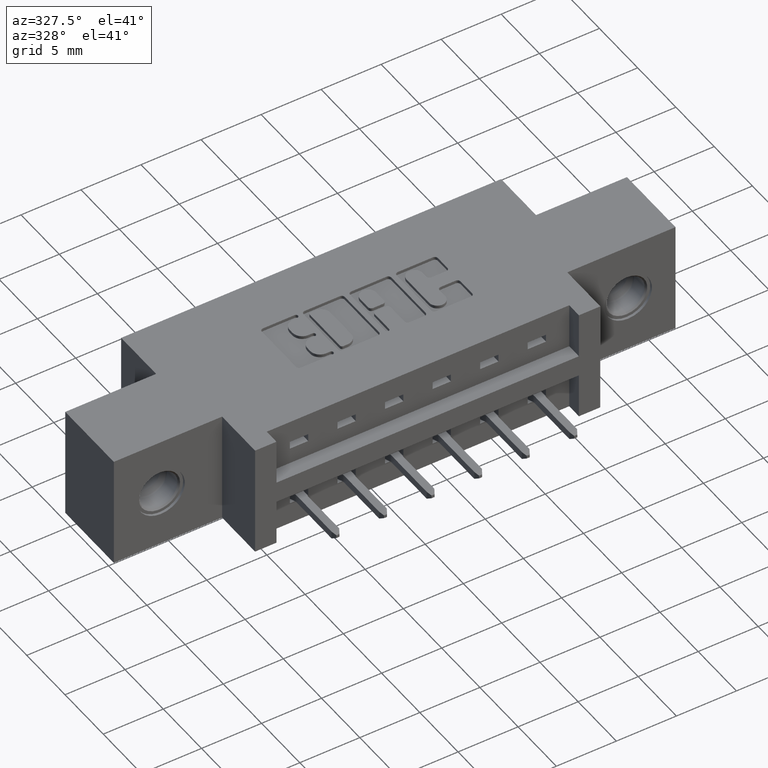
[diagram: clean part render]
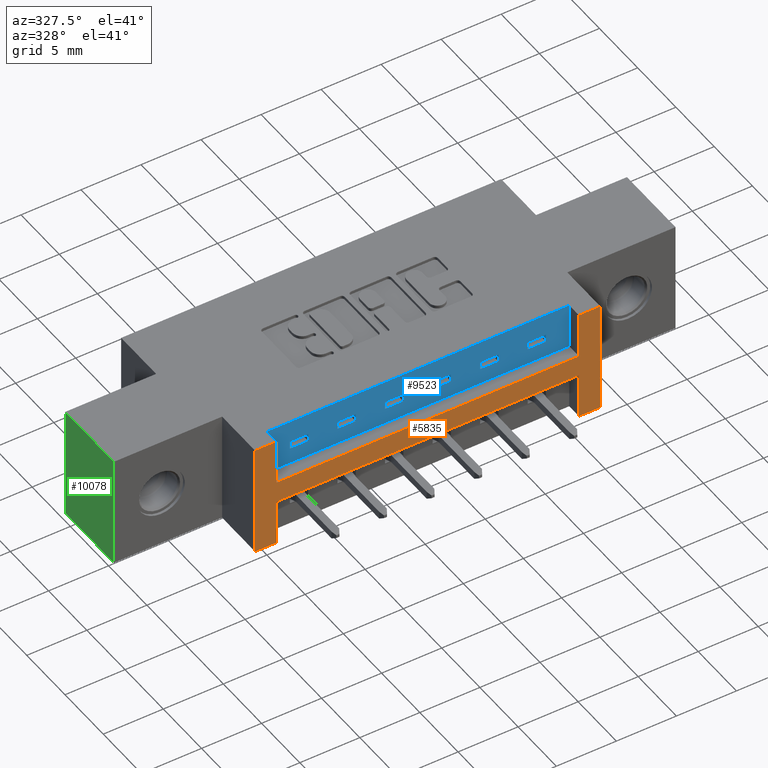
[diagram: same view with three faces highlighted in distinct colors, each labeled with its STEP entity id]
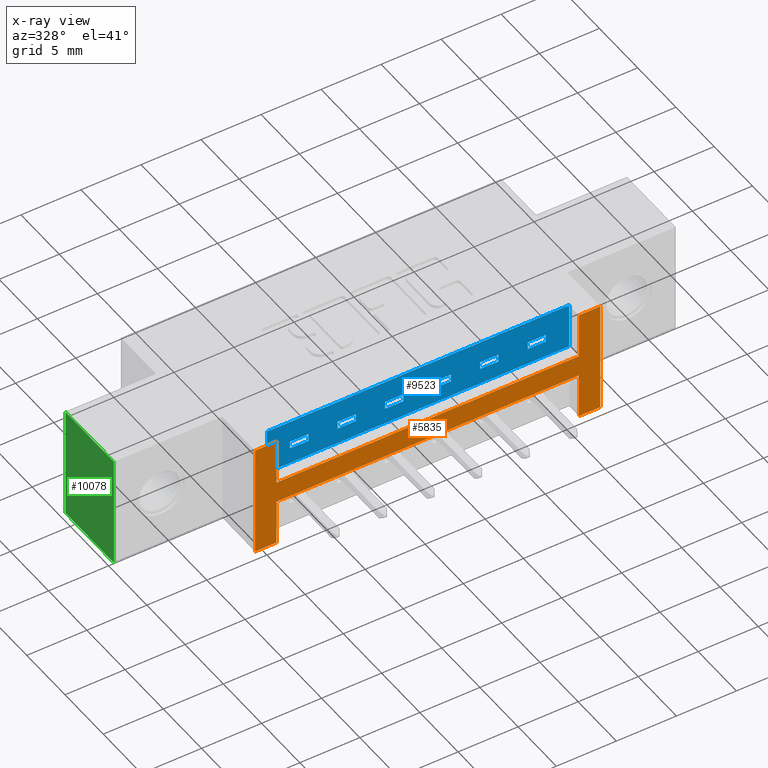
[diagram: x-ray of the same camera — body ghosted, the three highlighted faces saturated]
A machine part, auxiliary view with three faces highlighted in distinct colors.
The next image is the same camera in x-ray (body ghosted, the three faces saturated) — at least one of them is partly hidden behind the body in this view.
Their STEP definitions:

[orange] entity #5835 — the highlighted planar face has unit normal (0, -1, 0).
#41 = VERTEX_POINT ( 'NONE', #7594 ) ;
#54 = ORIENTED_EDGE ( 'NONE', *, *, #1058, .F. ) ;
#66 = ORIENTED_EDGE ( 'NONE', *, *, #1088, .F. ) ;
#119 = DIRECTION ( 'NONE',  ( -1.845843238962339800E-016, -0.0000000000000000000, 1.000000000000000000 ) ) ;
#147 = VERTEX_POINT ( 'NONE', #8760 ) ;
#204 = CARTESIAN_POINT ( 'NONE',  ( 0.3549999999999999800, 0.0000000000000000000, 0.0000000000000000000 ) ) ;
#332 = AXIS2_PLACEMENT_3D ( 'NONE', #10210, #6825, #1271 ) ;
#450 = EDGE_CURVE ( 'NONE', #3047, #6562, #7545, .T. ) ;
#459 = ORIENTED_EDGE ( 'NONE', *, *, #8491, .F. ) ;
#521 = CARTESIAN_POINT ( 'NONE',  ( 1.487000000000000800, 0.0000000000000000000, 1.386300176634805000E-016 ) ) ;
#606 = DIRECTION ( 'NONE',  ( 1.000000000000000000, 0.0000000000000000000, 0.0000000000000000000 ) ) ;
#779 = EDGE_CURVE ( 'NONE', #6380, #147, #6881, .T. ) ;
#930 = CARTESIAN_POINT ( 'NONE',  ( 0.4249999999999999300, 0.0000000000000000000, 0.0000000000000000000 ) ) ;
#1001 = EDGE_CURVE ( 'NONE', #2170, #3047, #5806, .T. ) ;
#1022 = EDGE_CURVE ( 'NONE', #41, #9401, #5551, .T. ) ;
#1058 = EDGE_CURVE ( 'NONE', #6845, #41, #4983, .T. ) ;
#1088 = EDGE_CURVE ( 'NONE', #4265, #6845, #5138, .T. ) ;
#1091 = EDGE_CURVE ( 'NONE', #147, #2153, #4669, .T. ) ;
#1128 = EDGE_CURVE ( 'NONE', #6013, #6380, #4194, .T. ) ;
#1156 = EDGE_CURVE ( 'NONE', #4386, #6013, #3450, .T. ) ;
#1246 = EDGE_CURVE ( 'NONE', #6562, #4386, #3093, .T. ) ;
#1271 = DIRECTION ( 'NONE',  ( 0.0000000000000000000, -0.0000000000000000000, -1.000000000000000000 ) ) ;
#1448 = CARTESIAN_POINT ( 'NONE',  ( 0.4249999999999999900, 0.0000000000000000000, -0.3700000000000000000 ) ) ;
#1540 = CARTESIAN_POINT ( 'NONE',  ( 1.417000000000000700, 0.0000000000000000000, 0.0000000000000000000 ) ) ;
#1567 = DIRECTION ( 'NONE',  ( 1.000000000000000000, 0.0000000000000000000, 0.0000000000000000000 ) ) ;
#1606 = EDGE_LOOP ( 'NONE', ( #9251, #9473, #9670, #54, #66, #459, #3331, #4197, #4270, #4340, #9333, #3038 ) ) ;
#1943 = CARTESIAN_POINT ( 'NONE',  ( 1.487000000000000800, 0.0000000000000000000, -0.3699999999999998800 ) ) ;
#1987 = DIRECTION ( 'NONE',  ( -1.000000000000000000, -0.0000000000000000000, -7.415439722215695600E-017 ) ) ;
#2051 = CARTESIAN_POINT ( 'NONE',  ( 0.4249999999999999300, 0.0000000000000000000, -0.1499999999999999900 ) ) ;
#2153 = VERTEX_POINT ( 'NONE', #9396 ) ;
#2170 = VERTEX_POINT ( 'NONE', #10214 ) ;
#2591 = EDGE_CURVE ( 'NONE', #9401, #2170, #7462, .T. ) ;
#3038 = ORIENTED_EDGE ( 'NONE', *, *, #450, .F. ) ;
#3047 = VERTEX_POINT ( 'NONE', #1943 ) ;
#3093 = LINE ( 'NONE', #9215, #3241 ) ;
#3241 = VECTOR ( 'NONE', #10454, 39.37007874015748100 ) ;
#3317 = LINE ( 'NONE', #7069, #4099 ) ;
#3331 = ORIENTED_EDGE ( 'NONE', *, *, #1091, .F. ) ;
#3450 = LINE ( 'NONE', #3532, #3516 ) ;
#3516 = VECTOR ( 'NONE', #9483, 39.37007874015748100 ) ;
#3532 = CARTESIAN_POINT ( 'NONE',  ( 0.4249999999999999900, 0.0000000000000000000, -0.2200000000000000000 ) ) ;
#3668 = VECTOR ( 'NONE', #9763, 39.37007874015748100 ) ;
#4099 = VECTOR ( 'NONE', #1567, 39.37007874015748100 ) ;
#4194 = LINE ( 'NONE', #1448, #3668 ) ;
#4197 = ORIENTED_EDGE ( 'NONE', *, *, #779, .F. ) ;
#4217 = VECTOR ( 'NONE', #119, 39.37007874015748100 ) ;
#4265 = VERTEX_POINT ( 'NONE', #9534 ) ;
#4270 = ORIENTED_EDGE ( 'NONE', *, *, #1128, .F. ) ;
#4298 = VECTOR ( 'NONE', #10192, 39.37007874015748100 ) ;
#4340 = ORIENTED_EDGE ( 'NONE', *, *, #1156, .F. ) ;
#4386 = VERTEX_POINT ( 'NONE', #7459 ) ;
#4390 = DIRECTION ( 'NONE',  ( -0.0000000000000000000, -0.0000000000000000000, 1.000000000000000000 ) ) ;
#4395 = CARTESIAN_POINT ( 'NONE',  ( 0.0000000000000000000, 0.0000000000000000000, -0.3700000000000001600 ) ) ;
#4669 = LINE ( 'NONE', #204, #4217 ) ;
#4924 = VECTOR ( 'NONE', #606, 39.37007874015748100 ) ;
#4983 = LINE ( 'NONE', #2051, #4924 ) ;
#5049 = FACE_OUTER_BOUND ( 'NONE', #1606, .T. ) ;
#5138 = LINE ( 'NONE', #930, #4298 ) ;
#5387 = VECTOR ( 'NONE', #4390, 39.37007874015748100 ) ;
#5551 = LINE ( 'NONE', #1540, #5387 ) ;
#5633 = VECTOR ( 'NONE', #9907, 39.37007874015748100 ) ;
#5806 = LINE ( 'NONE', #521, #5633 ) ;
#5835 = ADVANCED_FACE ( 'NONE', ( #5049 ), #9698, .T. ) ;
#5887 = VECTOR ( 'NONE', #9312, 39.37007874015748100 ) ;
#6013 = VERTEX_POINT ( 'NONE', #7752 ) ;
#6380 = VERTEX_POINT ( 'NONE', #6524 ) ;
#6524 = CARTESIAN_POINT ( 'NONE',  ( 0.4249999999999999900, 0.0000000000000000000, -0.3700000000000000000 ) ) ;
#6562 = VERTEX_POINT ( 'NONE', #8245 ) ;
#6608 = CARTESIAN_POINT ( 'NONE',  ( 0.0000000000000000000, 0.0000000000000000000, -0.3700000000000001600 ) ) ;
#6825 = DIRECTION ( 'NONE',  ( 0.0000000000000000000, -1.000000000000000000, 0.0000000000000000000 ) ) ;
#6845 = VERTEX_POINT ( 'NONE', #7812 ) ;
#6881 = LINE ( 'NONE', #4395, #6886 ) ;
#6886 = VECTOR ( 'NONE', #1987, 39.37007874015748100 ) ;
#7069 = CARTESIAN_POINT ( 'NONE',  ( 0.0000000000000000000, 0.0000000000000000000, 0.0000000000000000000 ) ) ;
#7459 = CARTESIAN_POINT ( 'NONE',  ( 1.417000000000000700, 0.0000000000000000000, -0.2200000000000000000 ) ) ;
#7462 = LINE ( 'NONE', #9432, #5887 ) ;
#7514 = VECTOR ( 'NONE', #9306, 39.37007874015748100 ) ;
#7545 = LINE ( 'NONE', #6608, #7514 ) ;
#7594 = CARTESIAN_POINT ( 'NONE',  ( 1.417000000000000700, 0.0000000000000000000, -0.1499999999999999900 ) ) ;
#7752 = CARTESIAN_POINT ( 'NONE',  ( 0.4249999999999999900, 0.0000000000000000000, -0.2200000000000000000 ) ) ;
#7812 = CARTESIAN_POINT ( 'NONE',  ( 0.4249999999999999300, 0.0000000000000000000, -0.1499999999999999900 ) ) ;
#8245 = CARTESIAN_POINT ( 'NONE',  ( 1.417000000000000700, 0.0000000000000000000, -0.3700000000000000000 ) ) ;
#8491 = EDGE_CURVE ( 'NONE', #2153, #4265, #3317, .T. ) ;
#8760 = CARTESIAN_POINT ( 'NONE',  ( 0.3550000000000000400, 0.0000000000000000000, -0.3700000000000001600 ) ) ;
#9215 = CARTESIAN_POINT ( 'NONE',  ( 1.417000000000000700, 0.0000000000000000000, -0.3700000000000000000 ) ) ;
#9251 = ORIENTED_EDGE ( 'NONE', *, *, #1001, .F. ) ;
#9306 = DIRECTION ( 'NONE',  ( -1.000000000000000000, -0.0000000000000000000, -7.415439722215695600E-017 ) ) ;
#9312 = DIRECTION ( 'NONE',  ( 1.000000000000000000, 0.0000000000000000000, 0.0000000000000000000 ) ) ;
#9333 = ORIENTED_EDGE ( 'NONE', *, *, #1246, .F. ) ;
#9396 = CARTESIAN_POINT ( 'NONE',  ( 0.3549999999999999800, 0.0000000000000000000, 0.0000000000000000000 ) ) ;
#9401 = VERTEX_POINT ( 'NONE', #10470 ) ;
#9432 = CARTESIAN_POINT ( 'NONE',  ( 0.0000000000000000000, 0.0000000000000000000, 0.0000000000000000000 ) ) ;
#9473 = ORIENTED_EDGE ( 'NONE', *, *, #2591, .F. ) ;
#9483 = DIRECTION ( 'NONE',  ( -1.000000000000000000, -0.0000000000000000000, -0.0000000000000000000 ) ) ;
#9534 = CARTESIAN_POINT ( 'NONE',  ( 0.4249999999999999300, 0.0000000000000000000, 0.0000000000000000000 ) ) ;
#9670 = ORIENTED_EDGE ( 'NONE', *, *, #1022, .F. ) ;
#9698 = PLANE ( 'NONE',  #332 ) ;
#9763 = DIRECTION ( 'NONE',  ( -0.0000000000000000000, -0.0000000000000000000, -1.000000000000000000 ) ) ;
#9907 = DIRECTION ( 'NONE',  ( 0.0000000000000000000, 0.0000000000000000000, -1.000000000000000000 ) ) ;
#10192 = DIRECTION ( 'NONE',  ( 0.0000000000000000000, 0.0000000000000000000, -1.000000000000000000 ) ) ;
#10210 = CARTESIAN_POINT ( 'NONE',  ( 0.0000000000000000000, 0.0000000000000000000, -0.3700000000000001600 ) ) ;
#10214 = CARTESIAN_POINT ( 'NONE',  ( 1.487000000000000800, 0.0000000000000000000, 0.0000000000000000000 ) ) ;
#10454 = DIRECTION ( 'NONE',  ( 0.0000000000000000000, 0.0000000000000000000, 1.000000000000000000 ) ) ;
#10470 = CARTESIAN_POINT ( 'NONE',  ( 1.417000000000000700, 0.0000000000000000000, 0.0000000000000000000 ) ) ;

[blue] entity #9523 — the highlighted planar face has unit normal (0, -1, 0).
#69 = DIRECTION ( 'NONE',  ( -1.000000000000000000, 0.0000000000000000000, 0.0000000000000000000 ) ) ;
#100 = ORIENTED_EDGE ( 'NONE', *, *, #4705, .T. ) ;
#144 = VERTEX_POINT ( 'NONE', #9048 ) ;
#207 = CARTESIAN_POINT ( 'NONE',  ( 1.028999999999999900, 0.05000000000000014800, -0.07250000000000000900 ) ) ;
#208 = CARTESIAN_POINT ( 'NONE',  ( 0.4249999999999999300, 0.05000000000000000300, -0.07250000000000005100 ) ) ;
#214 = VECTOR ( 'NONE', #3152, 39.37007874015748100 ) ;
#226 = DIRECTION ( 'NONE',  ( 0.0000000000000000000, 0.0000000000000000000, 1.000000000000000000 ) ) ;
#263 = ORIENTED_EDGE ( 'NONE', *, *, #4703, .F. ) ;
#317 = LINE ( 'NONE', #3988, #214 ) ;
#336 = VECTOR ( 'NONE', #3017, 39.37007874015748100 ) ;
#341 = ORIENTED_EDGE ( 'NONE', *, *, #4681, .T. ) ;
#366 = CARTESIAN_POINT ( 'NONE',  ( 0.6570000000000000300, 0.05000000000000000300, -0.1499999999999999900 ) ) ;
#367 = LINE ( 'NONE', #3718, #336 ) ;
#418 = VECTOR ( 'NONE', #4267, 39.37007874015748100 ) ;
#435 = CARTESIAN_POINT ( 'NONE',  ( 0.8730000000000000000, 0.05000000000000000300, -0.09750000000000003100 ) ) ;
#440 = VECTOR ( 'NONE', #4394, 39.37007874015748100 ) ;
#451 = VERTEX_POINT ( 'NONE', #8502 ) ;
#463 = VECTOR ( 'NONE', #4438, 39.37007874015748100 ) ;
#472 = LINE ( 'NONE', #4218, #418 ) ;
#490 = LINE ( 'NONE', #4521, #463 ) ;
#499 = CARTESIAN_POINT ( 'NONE',  ( 0.9689999999999998600, 0.05000000000000000300, -0.1499999999999999900 ) ) ;
#576 = LINE ( 'NONE', #4976, #440 ) ;
#631 = FACE_BOUND ( 'NONE', #8280, .T. ) ;
#648 = VERTEX_POINT ( 'NONE', #8224 ) ;
#687 = FACE_BOUND ( 'NONE', #3986, .T. ) ;
#712 = VERTEX_POINT ( 'NONE', #9744 ) ;
#748 = VECTOR ( 'NONE', #5376, 39.37007874015748100 ) ;
#774 = LINE ( 'NONE', #5420, #748 ) ;
#784 = CARTESIAN_POINT ( 'NONE',  ( 0.7170000000000000800, 0.05000000000000000300, -0.1499999999999999900 ) ) ;
#897 = VECTOR ( 'NONE', #6028, 39.37007874015748100 ) ;
#904 = VECTOR ( 'NONE', #3423, 39.37007874015748100 ) ;
#937 = LINE ( 'NONE', #5856, #897 ) ;
#1005 = VECTOR ( 'NONE', #6342, 39.37007874015748100 ) ;
#1016 = DIRECTION ( 'NONE',  ( 1.000000000000000000, 0.0000000000000000000, 0.0000000000000000000 ) ) ;
#1020 = LINE ( 'NONE', #9261, #904 ) ;
#1033 = CARTESIAN_POINT ( 'NONE',  ( 0.6570000000000000300, 0.05000000000000014800, -0.07250000000000003700 ) ) ;
#1046 = LINE ( 'NONE', #6736, #1005 ) ;
#1057 = CARTESIAN_POINT ( 'NONE',  ( 0.4249999999999999300, 0.05000000000000000300, -0.1499999999999999900 ) ) ;
#1114 = CARTESIAN_POINT ( 'NONE',  ( 0.4249999999999999300, 0.05000000000000000300, -0.09750000000000003100 ) ) ;
#1179 = VECTOR ( 'NONE', #6747, 39.37007874015748100 ) ;
#1199 = CARTESIAN_POINT ( 'NONE',  ( 0.5610000000000000500, 0.05000000000000014800, -0.07250000000000005100 ) ) ;
#1204 = LINE ( 'NONE', #7871, #1179 ) ;
#1223 = FACE_BOUND ( 'NONE', #5359, .T. ) ;
#1226 = LINE ( 'NONE', #7108, #1348 ) ;
#1236 = DIRECTION ( 'NONE',  ( 0.0000000000000000000, 0.0000000000000000000, 1.000000000000000000 ) ) ;
#1262 = ORIENTED_EDGE ( 'NONE', *, *, #4654, .T. ) ;
#1285 = ORIENTED_EDGE ( 'NONE', *, *, #5105, .F. ) ;
#1348 = VECTOR ( 'NONE', #7049, 39.37007874015748100 ) ;
#1365 = FACE_BOUND ( 'NONE', #2057, .T. ) ;
#1429 = DIRECTION ( 'NONE',  ( 1.000000000000000000, 0.0000000000000000000, 0.0000000000000000000 ) ) ;
#1462 = CARTESIAN_POINT ( 'NONE',  ( 1.028999999999999900, 0.05000000000000000300, -0.09750000000000001700 ) ) ;
#1486 = FACE_BOUND ( 'NONE', #7602, .T. ) ;
#1582 = CARTESIAN_POINT ( 'NONE',  ( 0.5610000000000000500, 0.05000000000000000300, -0.1499999999999999900 ) ) ;
#1610 = VERTEX_POINT ( 'NONE', #6752 ) ;
#1613 = FACE_OUTER_BOUND ( 'NONE', #7440, .T. ) ;
#1638 = VECTOR ( 'NONE', #10306, 39.37007874015748100 ) ;
#1687 = FACE_BOUND ( 'NONE', #10020, .T. ) ;
#1700 = VERTEX_POINT ( 'NONE', #6609 ) ;
#1822 = LINE ( 'NONE', #499, #1638 ) ;
#1826 = VECTOR ( 'NONE', #1429, 39.37007874015748100 ) ;
#1833 = ORIENTED_EDGE ( 'NONE', *, *, #4943, .F. ) ;
#1854 = VECTOR ( 'NONE', #2603, 39.37007874015748100 ) ;
#1881 = LINE ( 'NONE', #2339, #1826 ) ;
#1967 = ORIENTED_EDGE ( 'NONE', *, *, #5158, .T. ) ;
#1984 = ORIENTED_EDGE ( 'NONE', *, *, #5195, .F. ) ;
#1986 = LINE ( 'NONE', #2647, #1854 ) ;
#1998 = ORIENTED_EDGE ( 'NONE', *, *, #5192, .F. ) ;
#2012 = VECTOR ( 'NONE', #6108, 39.37007874015748100 ) ;
#2014 = PLANE ( 'NONE',  #9661 ) ;
#2057 = EDGE_LOOP ( 'NONE', ( #3050, #9284, #6516, #6275 ) ) ;
#2059 = ORIENTED_EDGE ( 'NONE', *, *, #5172, .F. ) ;
#2067 = ORIENTED_EDGE ( 'NONE', *, *, #4931, .T. ) ;
#2092 = LINE ( 'NONE', #5275, #2012 ) ;
#2095 = DIRECTION ( 'NONE',  ( -1.000000000000000000, 0.0000000000000000000, 0.0000000000000000000 ) ) ;
#2100 = VECTOR ( 'NONE', #5652, 39.37007874015748100 ) ;
#2118 = LINE ( 'NONE', #5942, #2100 ) ;
#2175 = DIRECTION ( 'NONE',  ( 0.0000000000000000000, 0.0000000000000000000, 1.000000000000000000 ) ) ;
#2210 = DIRECTION ( 'NONE',  ( 1.000000000000000000, 0.0000000000000000000, 0.0000000000000000000 ) ) ;
#2213 = LINE ( 'NONE', #6248, #2242 ) ;
#2242 = VECTOR ( 'NONE', #6487, 39.37007874015748100 ) ;
#2284 = ORIENTED_EDGE ( 'NONE', *, *, #5206, .T. ) ;
#2292 = CARTESIAN_POINT ( 'NONE',  ( 0.5010000000000001100, 0.05000000000000000300, -0.1499999999999999900 ) ) ;
#2339 = CARTESIAN_POINT ( 'NONE',  ( 0.4249999999999999300, 0.05000000000000000300, -0.09750000000000001700 ) ) ;
#2421 = ORIENTED_EDGE ( 'NONE', *, *, #5223, .F. ) ;
#2435 = ORIENTED_EDGE ( 'NONE', *, *, #5246, .F. ) ;
#2475 = VECTOR ( 'NONE', #10155, 39.37007874015748100 ) ;
#2480 = CARTESIAN_POINT ( 'NONE',  ( 0.4249999999999999300, 0.05000000000000000300, -0.07250000000000005100 ) ) ;
#2482 = CARTESIAN_POINT ( 'NONE',  ( 0.4249999999999999300, 0.05000000000000000300, -0.09750000000000005900 ) ) ;
#2567 = CARTESIAN_POINT ( 'NONE',  ( 1.124999999999999800, 0.05000000000000014800, -0.07250000000000000900 ) ) ;
#2571 = VECTOR ( 'NONE', #69, 39.37007874015748100 ) ;
#2586 = LINE ( 'NONE', #208, #2571 ) ;
#2603 = DIRECTION ( 'NONE',  ( 0.0000000000000000000, 0.0000000000000000000, 1.000000000000000000 ) ) ;
#2626 = LINE ( 'NONE', #784, #2475 ) ;
#2647 = CARTESIAN_POINT ( 'NONE',  ( 0.8730000000000000000, 0.05000000000000000300, -0.1499999999999999900 ) ) ;
#2650 = VERTEX_POINT ( 'NONE', #6509 ) ;
#2698 = DIRECTION ( 'NONE',  ( -0.0000000000000000000, -0.0000000000000000000, 1.000000000000000000 ) ) ;
#2737 = LINE ( 'NONE', #366, #2880 ) ;
#2755 = CARTESIAN_POINT ( 'NONE',  ( 1.417000000000000700, 0.05000000000000000300, 0.0000000000000000000 ) ) ;
#2872 = VECTOR ( 'NONE', #1016, 39.37007874015748100 ) ;
#2880 = VECTOR ( 'NONE', #226, 39.37007874015748100 ) ;
#2967 = LINE ( 'NONE', #1114, #2872 ) ;
#2971 = CARTESIAN_POINT ( 'NONE',  ( 0.4249999999999999300, 0.05000000000000000300, -0.1499999999999999900 ) ) ;
#2989 = VERTEX_POINT ( 'NONE', #1462 ) ;
#3005 = DIRECTION ( 'NONE',  ( 0.0000000000000000000, -0.0000000000000000000, -1.000000000000000000 ) ) ;
#3016 = VECTOR ( 'NONE', #1236, 39.37007874015748100 ) ;
#3017 = DIRECTION ( 'NONE',  ( 0.0000000000000000000, 0.0000000000000000000, 1.000000000000000000 ) ) ;
#3050 = ORIENTED_EDGE ( 'NONE', *, *, #4793, .F. ) ;
#3070 = LINE ( 'NONE', #1582, #3016 ) ;
#3112 = DIRECTION ( 'NONE',  ( 1.000000000000000000, 0.0000000000000000000, 0.0000000000000000000 ) ) ;
#3127 = DIRECTION ( 'NONE',  ( 0.0000000000000000000, 0.0000000000000000000, -1.000000000000000000 ) ) ;
#3152 = DIRECTION ( 'NONE',  ( -1.000000000000000000, 0.0000000000000000000, 0.0000000000000000000 ) ) ;
#3160 = VECTOR ( 'NONE', #2095, 39.37007874015748100 ) ;
#3187 = VECTOR ( 'NONE', #2210, 39.37007874015748100 ) ;
#3189 = LINE ( 'NONE', #2482, #3187 ) ;
#3200 = ORIENTED_EDGE ( 'NONE', *, *, #5104, .F. ) ;
#3206 = LINE ( 'NONE', #2292, #3343 ) ;
#3262 = VECTOR ( 'NONE', #2698, 39.37007874015748100 ) ;
#3281 = LINE ( 'NONE', #2480, #3160 ) ;
#3336 = VECTOR ( 'NONE', #3112, 39.37007874015748100 ) ;
#3343 = VECTOR ( 'NONE', #2175, 39.37007874015748100 ) ;
#3353 = LINE ( 'NONE', #2971, #3336 ) ;
#3410 = VECTOR ( 'NONE', #3127, 39.37007874015748100 ) ;
#3423 = DIRECTION ( 'NONE',  ( -1.000000000000000000, -0.0000000000000000000, -0.0000000000000000000 ) ) ;
#3427 = LINE ( 'NONE', #2755, #3262 ) ;
#3472 = LINE ( 'NONE', #3682, #3410 ) ;
#3682 = CARTESIAN_POINT ( 'NONE',  ( 0.4249999999999999300, 0.05000000000000000300, 0.0000000000000000000 ) ) ;
#3718 = CARTESIAN_POINT ( 'NONE',  ( 1.340999999999999700, 0.05000000000000000300, -0.1499999999999999900 ) ) ;
#3939 = ORIENTED_EDGE ( 'NONE', *, *, #9017, .T. ) ;
#3986 = EDGE_LOOP ( 'NONE', ( #7643, #1967, #2059, #1998 ) ) ;
#3988 = CARTESIAN_POINT ( 'NONE',  ( 0.4249999999999999300, 0.05000000000000000300, -0.07249999999999998100 ) ) ;
#4018 = CARTESIAN_POINT ( 'NONE',  ( 0.6570000000000000300, 0.05000000000000001000, -0.09750000000000003100 ) ) ;
#4089 = CARTESIAN_POINT ( 'NONE',  ( 0.7170000000000000800, 0.05000000000000014800, -0.07250000000000003700 ) ) ;
#4218 = CARTESIAN_POINT ( 'NONE',  ( 1.280999999999999700, 0.05000000000000000300, -0.1499999999999999900 ) ) ;
#4267 = DIRECTION ( 'NONE',  ( 0.0000000000000000000, 0.0000000000000000000, 1.000000000000000000 ) ) ;
#4290 = CARTESIAN_POINT ( 'NONE',  ( 0.5610000000000000500, 0.05000000000000000300, -0.09750000000000005900 ) ) ;
#4371 = ORIENTED_EDGE ( 'NONE', *, *, #4707, .F. ) ;
#4394 = DIRECTION ( 'NONE',  ( 1.000000000000000000, 0.0000000000000000000, 0.0000000000000000000 ) ) ;
#4438 = DIRECTION ( 'NONE',  ( 0.0000000000000000000, 0.0000000000000000000, 1.000000000000000000 ) ) ;
#4521 = CARTESIAN_POINT ( 'NONE',  ( 1.185000000000000100, 0.05000000000000000300, -0.1499999999999999900 ) ) ;
#4549 = CARTESIAN_POINT ( 'NONE',  ( 0.4249999999999999300, 0.05000000000000000300, -0.1499999999999999900 ) ) ;
#4654 = EDGE_CURVE ( 'NONE', #10269, #8625, #3472, .T. ) ;
#4681 = EDGE_CURVE ( 'NONE', #8625, #8805, #3353, .T. ) ;
#4684 = EDGE_CURVE ( 'NONE', #8805, #7224, #3427, .T. ) ;
#4703 = EDGE_CURVE ( 'NONE', #648, #7436, #3189, .T. ) ;
#4705 = EDGE_CURVE ( 'NONE', #648, #6621, #3206, .T. ) ;
#4707 = EDGE_CURVE ( 'NONE', #9629, #6621, #3281, .T. ) ;
#4772 = EDGE_CURVE ( 'NONE', #7436, #9629, #3070, .T. ) ;
#4793 = EDGE_CURVE ( 'NONE', #8907, #7344, #2967, .T. ) ;
#4822 = DIRECTION ( 'NONE',  ( 0.0000000000000000000, -1.000000000000000000, 0.0000000000000000000 ) ) ;
#4833 = EDGE_CURVE ( 'NONE', #8907, #7990, #2737, .T. ) ;
#4848 = EDGE_CURVE ( 'NONE', #7233, #7990, #2586, .T. ) ;
#4884 = EDGE_CURVE ( 'NONE', #7344, #7233, #2626, .T. ) ;
#4929 = EDGE_CURVE ( 'NONE', #1610, #10297, #2213, .T. ) ;
#4931 = EDGE_CURVE ( 'NONE', #1610, #144, #2118, .T. ) ;
#4943 = EDGE_CURVE ( 'NONE', #2650, #144, #2092, .T. ) ;
#4976 = CARTESIAN_POINT ( 'NONE',  ( 0.4249999999999999300, 0.05000000000000000300, -0.09750000000000000300 ) ) ;
#4980 = EDGE_CURVE ( 'NONE', #10297, #2650, #1986, .T. ) ;
#4984 = EDGE_CURVE ( 'NONE', #7283, #2989, #1881, .T. ) ;
#5012 = EDGE_CURVE ( 'NONE', #7283, #7530, #1822, .T. ) ;
#5097 = VERTEX_POINT ( 'NONE', #8037 ) ;
#5104 = EDGE_CURVE ( 'NONE', #7191, #7530, #1226, .T. ) ;
#5105 = EDGE_CURVE ( 'NONE', #2989, #7191, #1204, .T. ) ;
#5136 = EDGE_CURVE ( 'NONE', #451, #7802, #1046, .T. ) ;
#5158 = EDGE_CURVE ( 'NONE', #451, #6891, #937, .T. ) ;
#5172 = EDGE_CURVE ( 'NONE', #712, #6891, #774, .T. ) ;
#5192 = EDGE_CURVE ( 'NONE', #7802, #712, #490, .T. ) ;
#5195 = EDGE_CURVE ( 'NONE', #7736, #7296, #576, .T. ) ;
#5206 = EDGE_CURVE ( 'NONE', #7736, #1700, #472, .T. ) ;
#5223 = EDGE_CURVE ( 'NONE', #5097, #1700, #317, .T. ) ;
#5246 = EDGE_CURVE ( 'NONE', #7296, #5097, #367, .T. ) ;
#5275 = CARTESIAN_POINT ( 'NONE',  ( 0.4249999999999999300, 0.05000000000000000300, -0.07250000000000000900 ) ) ;
#5359 = EDGE_LOOP ( 'NONE', ( #8390, #7901, #3200, #1285 ) ) ;
#5376 = DIRECTION ( 'NONE',  ( -1.000000000000000000, 0.0000000000000000000, 0.0000000000000000000 ) ) ;
#5420 = CARTESIAN_POINT ( 'NONE',  ( 0.4249999999999999300, 0.05000000000000000300, -0.07250000000000000900 ) ) ;
#5454 = CARTESIAN_POINT ( 'NONE',  ( 1.280999999999999700, 0.05000000000000001000, -0.09750000000000000300 ) ) ;
#5652 = DIRECTION ( 'NONE',  ( 0.0000000000000000000, 0.0000000000000000000, 1.000000000000000000 ) ) ;
#5856 = CARTESIAN_POINT ( 'NONE',  ( 1.124999999999999800, 0.05000000000000000300, -0.1499999999999999900 ) ) ;
#5879 = CARTESIAN_POINT ( 'NONE',  ( 0.9689999999999998600, 0.05000000000000001000, -0.09750000000000001700 ) ) ;
#5884 = ORIENTED_EDGE ( 'NONE', *, *, #4684, .T. ) ;
#5942 = CARTESIAN_POINT ( 'NONE',  ( 0.8129999999999999400, 0.05000000000000000300, -0.1499999999999999900 ) ) ;
#5975 = ORIENTED_EDGE ( 'NONE', *, *, #4929, .F. ) ;
#6028 = DIRECTION ( 'NONE',  ( 0.0000000000000000000, 0.0000000000000000000, 1.000000000000000000 ) ) ;
#6108 = DIRECTION ( 'NONE',  ( -1.000000000000000000, 0.0000000000000000000, 0.0000000000000000000 ) ) ;
#6248 = CARTESIAN_POINT ( 'NONE',  ( 0.4249999999999999300, 0.05000000000000000300, -0.09750000000000003100 ) ) ;
#6275 = ORIENTED_EDGE ( 'NONE', *, *, #4884, .F. ) ;
#6342 = DIRECTION ( 'NONE',  ( 1.000000000000000000, 0.0000000000000000000, 0.0000000000000000000 ) ) ;
#6487 = DIRECTION ( 'NONE',  ( 1.000000000000000000, 0.0000000000000000000, 0.0000000000000000000 ) ) ;
#6509 = CARTESIAN_POINT ( 'NONE',  ( 0.8730000000000000000, 0.05000000000000014800, -0.07250000000000002300 ) ) ;
#6516 = ORIENTED_EDGE ( 'NONE', *, *, #4848, .F. ) ;
#6527 = CARTESIAN_POINT ( 'NONE',  ( 1.417000000000000700, 0.05000000000000000300, -0.1499999999999999900 ) ) ;
#6609 = CARTESIAN_POINT ( 'NONE',  ( 1.280999999999999700, 0.05000000000000014800, -0.07249999999999998100 ) ) ;
#6621 = VERTEX_POINT ( 'NONE', #6803 ) ;
#6736 = CARTESIAN_POINT ( 'NONE',  ( 0.4249999999999999300, 0.05000000000000000300, -0.09750000000000000300 ) ) ;
#6747 = DIRECTION ( 'NONE',  ( 0.0000000000000000000, 0.0000000000000000000, 1.000000000000000000 ) ) ;
#6752 = CARTESIAN_POINT ( 'NONE',  ( 0.8129999999999999400, 0.05000000000000001000, -0.09750000000000003100 ) ) ;
#6797 = CARTESIAN_POINT ( 'NONE',  ( 1.340999999999999700, 0.05000000000000000300, -0.09750000000000000300 ) ) ;
#6803 = CARTESIAN_POINT ( 'NONE',  ( 0.5010000000000001100, 0.05000000000000014800, -0.07250000000000005100 ) ) ;
#6891 = VERTEX_POINT ( 'NONE', #2567 ) ;
#7049 = DIRECTION ( 'NONE',  ( -1.000000000000000000, 0.0000000000000000000, 0.0000000000000000000 ) ) ;
#7108 = CARTESIAN_POINT ( 'NONE',  ( 0.4249999999999999300, 0.05000000000000000300, -0.07250000000000000900 ) ) ;
#7191 = VERTEX_POINT ( 'NONE', #207 ) ;
#7224 = VERTEX_POINT ( 'NONE', #9033 ) ;
#7233 = VERTEX_POINT ( 'NONE', #4089 ) ;
#7283 = VERTEX_POINT ( 'NONE', #5879 ) ;
#7296 = VERTEX_POINT ( 'NONE', #6797 ) ;
#7344 = VERTEX_POINT ( 'NONE', #7571 ) ;
#7436 = VERTEX_POINT ( 'NONE', #4290 ) ;
#7440 = EDGE_LOOP ( 'NONE', ( #1262, #341, #5884, #3939 ) ) ;
#7530 = VERTEX_POINT ( 'NONE', #9274 ) ;
#7571 = CARTESIAN_POINT ( 'NONE',  ( 0.7170000000000000800, 0.05000000000000000300, -0.09750000000000003100 ) ) ;
#7602 = EDGE_LOOP ( 'NONE', ( #263, #100, #4371, #9047 ) ) ;
#7643 = ORIENTED_EDGE ( 'NONE', *, *, #5136, .F. ) ;
#7736 = VERTEX_POINT ( 'NONE', #5454 ) ;
#7802 = VERTEX_POINT ( 'NONE', #8000 ) ;
#7871 = CARTESIAN_POINT ( 'NONE',  ( 1.028999999999999900, 0.05000000000000000300, -0.1499999999999999900 ) ) ;
#7901 = ORIENTED_EDGE ( 'NONE', *, *, #5012, .T. ) ;
#7990 = VERTEX_POINT ( 'NONE', #1033 ) ;
#8000 = CARTESIAN_POINT ( 'NONE',  ( 1.185000000000000100, 0.05000000000000000300, -0.09750000000000000300 ) ) ;
#8037 = CARTESIAN_POINT ( 'NONE',  ( 1.340999999999999700, 0.05000000000000014800, -0.07249999999999998100 ) ) ;
#8224 = CARTESIAN_POINT ( 'NONE',  ( 0.5010000000000001100, 0.05000000000000001000, -0.09750000000000005900 ) ) ;
#8280 = EDGE_LOOP ( 'NONE', ( #1984, #2284, #2421, #2435 ) ) ;
#8390 = ORIENTED_EDGE ( 'NONE', *, *, #4984, .F. ) ;
#8502 = CARTESIAN_POINT ( 'NONE',  ( 1.124999999999999800, 0.05000000000000001000, -0.09750000000000000300 ) ) ;
#8625 = VERTEX_POINT ( 'NONE', #4549 ) ;
#8805 = VERTEX_POINT ( 'NONE', #6527 ) ;
#8907 = VERTEX_POINT ( 'NONE', #4018 ) ;
#9017 = EDGE_CURVE ( 'NONE', #7224, #10269, #1020, .T. ) ;
#9033 = CARTESIAN_POINT ( 'NONE',  ( 1.417000000000000700, 0.05000000000000000300, 0.0000000000000000000 ) ) ;
#9047 = ORIENTED_EDGE ( 'NONE', *, *, #4772, .F. ) ;
#9048 = CARTESIAN_POINT ( 'NONE',  ( 0.8129999999999999400, 0.05000000000000014800, -0.07250000000000002300 ) ) ;
#9163 = CARTESIAN_POINT ( 'NONE',  ( 0.4249999999999999300, 0.05000000000000000300, 0.0000000000000000000 ) ) ;
#9261 = CARTESIAN_POINT ( 'NONE',  ( 0.4249999999999999300, 0.05000000000000000300, 0.0000000000000000000 ) ) ;
#9274 = CARTESIAN_POINT ( 'NONE',  ( 0.9689999999999998600, 0.05000000000000014800, -0.07250000000000000900 ) ) ;
#9284 = ORIENTED_EDGE ( 'NONE', *, *, #4833, .T. ) ;
#9523 = ADVANCED_FACE ( 'NONE', ( #1613, #1486, #1365, #1687, #1223, #687, #631 ), #2014, .T. ) ;
#9580 = ORIENTED_EDGE ( 'NONE', *, *, #4980, .F. ) ;
#9629 = VERTEX_POINT ( 'NONE', #1199 ) ;
#9661 = AXIS2_PLACEMENT_3D ( 'NONE', #1057, #4822, #3005 ) ;
#9744 = CARTESIAN_POINT ( 'NONE',  ( 1.184999999999999800, 0.05000000000000014800, -0.07250000000000000900 ) ) ;
#10020 = EDGE_LOOP ( 'NONE', ( #5975, #2067, #1833, #9580 ) ) ;
#10155 = DIRECTION ( 'NONE',  ( 0.0000000000000000000, 0.0000000000000000000, 1.000000000000000000 ) ) ;
#10269 = VERTEX_POINT ( 'NONE', #9163 ) ;
#10297 = VERTEX_POINT ( 'NONE', #435 ) ;
#10306 = DIRECTION ( 'NONE',  ( 0.0000000000000000000, 0.0000000000000000000, 1.000000000000000000 ) ) ;

[green] entity #10078 — the highlighted planar face has unit normal (1, 0, 0).
#427 = CARTESIAN_POINT ( 'NONE',  ( 0.0000000000000000000, 0.4199999999999999800, 0.0000000000000000000 ) ) ;
#431 = CARTESIAN_POINT ( 'NONE',  ( 0.0000000000000000000, 0.1699999999999999800, 0.0000000000000000000 ) ) ;
#770 = VERTEX_POINT ( 'NONE', #6004 ) ;
#2002 = VERTEX_POINT ( 'NONE', #427 ) ;
#2168 = EDGE_CURVE ( 'NONE', #9681, #770, #3557, .T. ) ;
#2200 = EDGE_CURVE ( 'NONE', #8174, #2002, #3320, .T. ) ;
#2246 = EDGE_CURVE ( 'NONE', #8174, #770, #2411, .T. ) ;
#2308 = VECTOR ( 'NONE', #4358, 39.37007874015748100 ) ;
#2382 = CARTESIAN_POINT ( 'NONE',  ( 0.0000000000000000000, 0.4199999999999999800, 0.0000000000000000000 ) ) ;
#2411 = LINE ( 'NONE', #7261, #2308 ) ;
#2993 = VECTOR ( 'NONE', #5562, 39.37007874015748100 ) ;
#3320 = LINE ( 'NONE', #2382, #2993 ) ;
#3413 = CARTESIAN_POINT ( 'NONE',  ( 0.0000000000000000000, 0.1699999999999999800, 0.0000000000000000000 ) ) ;
#3523 = VECTOR ( 'NONE', #3637, 39.37007874015748100 ) ;
#3557 = LINE ( 'NONE', #431, #3523 ) ;
#3637 = DIRECTION ( 'NONE',  ( 0.0000000000000000000, 0.0000000000000000000, -1.000000000000000000 ) ) ;
#3996 = PLANE ( 'NONE',  #7178 ) ;
#4344 = LINE ( 'NONE', #6627, #4455 ) ;
#4358 = DIRECTION ( 'NONE',  ( -0.0000000000000000000, -1.000000000000000000, -0.0000000000000000000 ) ) ;
#4455 = VECTOR ( 'NONE', #6945, 39.37007874015748100 ) ;
#4479 = EDGE_CURVE ( 'NONE', #2002, #9681, #4344, .T. ) ;
#4899 = DIRECTION ( 'NONE',  ( 1.000000000000000000, -0.0000000000000000000, 0.0000000000000000000 ) ) ;
#5129 = FACE_OUTER_BOUND ( 'NONE', #9929, .T. ) ;
#5562 = DIRECTION ( 'NONE',  ( -0.0000000000000000000, -0.0000000000000000000, 1.000000000000000000 ) ) ;
#6004 = CARTESIAN_POINT ( 'NONE',  ( 0.0000000000000000000, 0.1699999999999999800, -0.3700000000000001600 ) ) ;
#6378 = ORIENTED_EDGE ( 'NONE', *, *, #2168, .F. ) ;
#6595 = CARTESIAN_POINT ( 'NONE',  ( 0.0000000000000000000, 0.5999999999999999800, 0.0000000000000000000 ) ) ;
#6627 = CARTESIAN_POINT ( 'NONE',  ( 0.0000000000000000000, 0.5999999999999999800, 0.0000000000000000000 ) ) ;
#6711 = ORIENTED_EDGE ( 'NONE', *, *, #4479, .F. ) ;
#6843 = ORIENTED_EDGE ( 'NONE', *, *, #2200, .F. ) ;
#6882 = ORIENTED_EDGE ( 'NONE', *, *, #2246, .T. ) ;
#6945 = DIRECTION ( 'NONE',  ( -0.0000000000000000000, -1.000000000000000000, -0.0000000000000000000 ) ) ;
#7178 = AXIS2_PLACEMENT_3D ( 'NONE', #6595, #4899, #10122 ) ;
#7261 = CARTESIAN_POINT ( 'NONE',  ( 0.0000000000000000000, 0.5999999999999999800, -0.3700000000000001600 ) ) ;
#8174 = VERTEX_POINT ( 'NONE', #10212 ) ;
#9681 = VERTEX_POINT ( 'NONE', #3413 ) ;
#9929 = EDGE_LOOP ( 'NONE', ( #6378, #6711, #6843, #6882 ) ) ;
#10078 = ADVANCED_FACE ( 'NONE', ( #5129 ), #3996, .F. ) ;
#10122 = DIRECTION ( 'NONE',  ( 0.0000000000000000000, 0.0000000000000000000, -1.000000000000000000 ) ) ;
#10212 = CARTESIAN_POINT ( 'NONE',  ( 0.0000000000000000000, 0.4199999999999999800, -0.3700000000000001600 ) ) ;